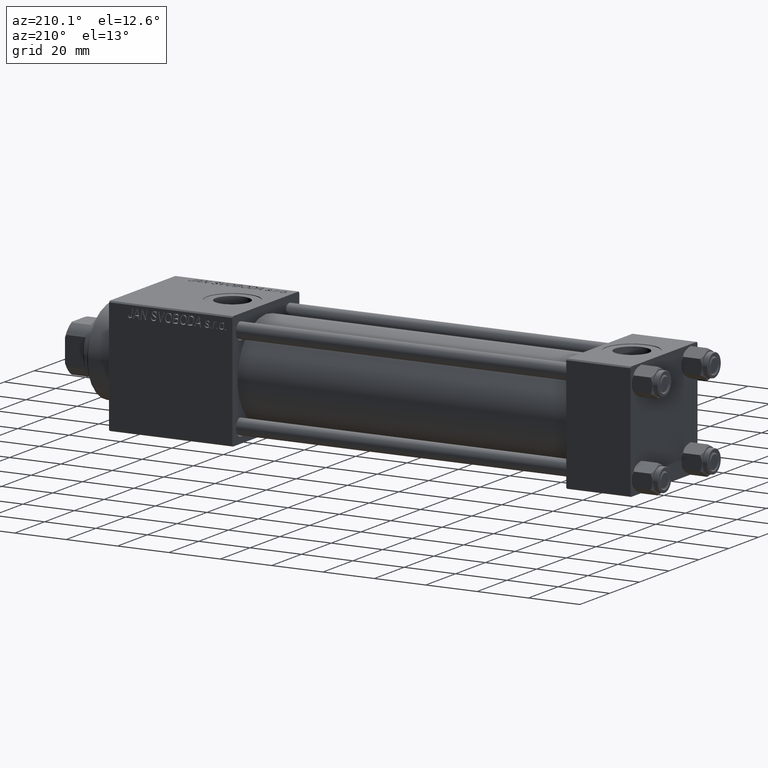
[diagram: clean part render]
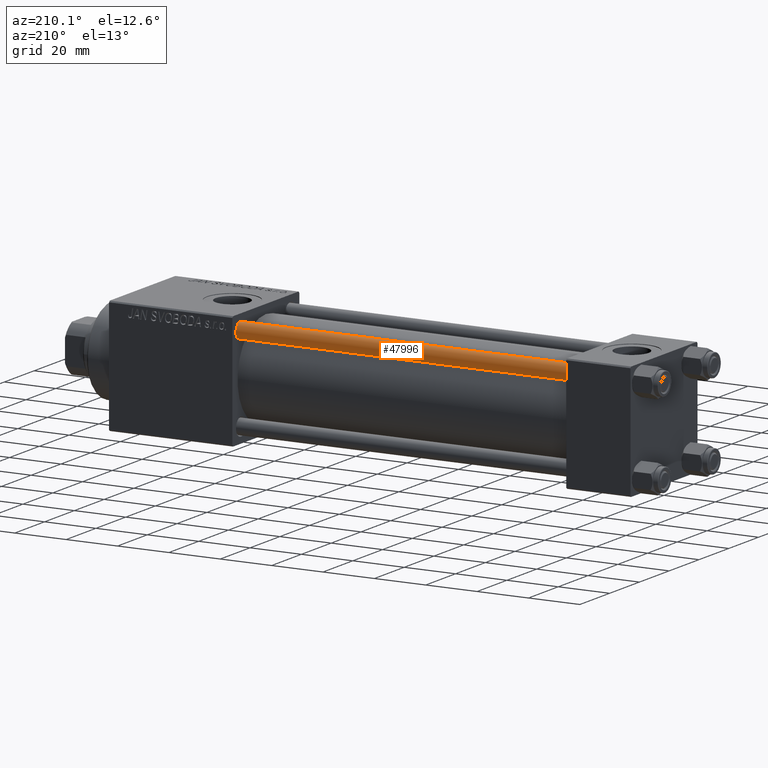
[diagram: same view with one face highlighted and labeled with its STEP entity id]
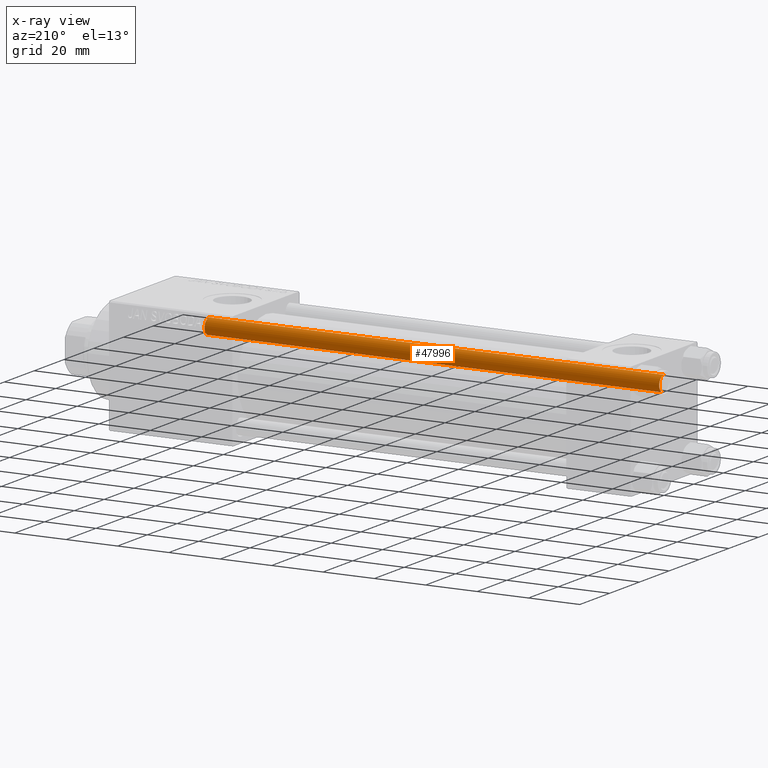
[diagram: x-ray of the same camera — body ghosted, the highlighted face saturated]
A machine part, auxiliary view. The second image highlights one B-rep face of the part: STEP entity #47996.
The next image is the same camera in x-ray: the body ghosted, the highlighted face saturated — about 0% of this face is hidden behind the body in this view.
In plain terms, the highlighted cylindrical surface (edge-blend (fillet) strip) has radius 3 mm, axis along (-1, 0, 0).
Its self-contained STEP definition (entity closure, byte-faithful):
#1314 = EDGE_CURVE ( 'NONE', #17821, #8211, #24050, .T. ) ;
#3479 = CYLINDRICAL_SURFACE ( 'NONE', #49284, 3.000000000000000444 ) ;
#6969 = VERTEX_POINT ( 'NONE', #19729 ) ;
#7112 = DIRECTION ( 'NONE',  ( -1.000000000000000000, 0.000000000000000000, 0.000000000000000000 ) ) ;
#7325 = ORIENTED_EDGE ( 'NONE', *, *, #1314, .T. ) ;
#7505 = AXIS2_PLACEMENT_3D ( 'NONE', #23891, #38958, #31698 ) ;
#8135 = DIRECTION ( 'NONE',  ( -0.000000000000000000, -0.000000000000000000, -1.000000000000000000 ) ) ;
#8211 = VERTEX_POINT ( 'NONE', #23041 ) ;
#8713 = VERTEX_POINT ( 'NONE', #41636 ) ;
#12073 = VECTOR ( 'NONE', #24553, 1000.000000000000000 ) ;
#14805 = EDGE_LOOP ( 'NONE', ( #34088, #15264, #7325, #29474 ) ) ;
#15264 = ORIENTED_EDGE ( 'NONE', *, *, #50277, .T. ) ;
#17792 = EDGE_CURVE ( 'NONE', #6969, #8713, #26935, .T. ) ;
#17821 = VERTEX_POINT ( 'NONE', #31934 ) ;
#19729 = CARTESIAN_POINT ( 'NONE',  ( -3.000000000000000444, 0.000000000000000000, 177.5000000000000000 ) ) ;
#21730 = DIRECTION ( 'NONE',  ( -0.000000000000000000, -0.000000000000000000, -1.000000000000000000 ) ) ;
#22785 = EDGE_CURVE ( 'NONE', #6969, #8211, #44604, .T. ) ;
#23041 = CARTESIAN_POINT ( 'NONE',  ( -3.000000000000000444, 0.000000000000000000, 0.5000000000000281997 ) ) ;
#23102 = DIRECTION ( 'NONE',  ( 1.000000000000000000, 0.000000000000000000, 0.000000000000000000 ) ) ;
#23699 = FACE_OUTER_BOUND ( 'NONE', #14805, .T. ) ;
#23891 = CARTESIAN_POINT ( 'NONE',  ( 0.000000000000000000, 0.000000000000000000, 0.5000000000000281997 ) ) ;
#23944 = CARTESIAN_POINT ( 'NONE',  ( 0.000000000000000000, 0.000000000000000000, 178.0000000000000000 ) ) ;
#24050 = CIRCLE ( 'NONE', #7505, 3.000000000000000444 ) ;
#24553 = DIRECTION ( 'NONE',  ( -0.000000000000000000, -0.000000000000000000, -1.000000000000000000 ) ) ;
#26752 = DIRECTION ( 'NONE',  ( 0.000000000000000000, 0.000000000000000000, -1.000000000000000000 ) ) ;
#26935 = CIRCLE ( 'NONE', #35230, 3.000000000000000444 ) ;
#29474 = ORIENTED_EDGE ( 'NONE', *, *, #22785, .F. ) ;
#31417 = CARTESIAN_POINT ( 'NONE',  ( 0.000000000000000000, 0.000000000000000000, 177.5000000000000000 ) ) ;
#31698 = DIRECTION ( 'NONE',  ( 1.000000000000000000, 0.000000000000000000, 0.000000000000000000 ) ) ;
#31934 = CARTESIAN_POINT ( 'NONE',  ( 3.000000000000000444, 3.673940397442060361E-16, 0.5000000000000281997 ) ) ;
#34088 = ORIENTED_EDGE ( 'NONE', *, *, #17792, .T. ) ;
#35230 = AXIS2_PLACEMENT_3D ( 'NONE', #31417, #26752, #23102 ) ;
#38958 = DIRECTION ( 'NONE',  ( -0.000000000000000000, -0.000000000000000000, 1.000000000000000000 ) ) ;
#40653 = CARTESIAN_POINT ( 'NONE',  ( 3.000000000000000444, 3.673940397442060361E-16, 178.0000000000000000 ) ) ;
#41117 = VECTOR ( 'NONE', #21730, 1000.000000000000000 ) ;
#41636 = CARTESIAN_POINT ( 'NONE',  ( 3.000000000000000444, 3.673940397442060361E-16, 177.5000000000000000 ) ) ;
#44288 = LINE ( 'NONE', #40653, #12073 ) ;
#44604 = LINE ( 'NONE', #49272, #41117 ) ;
#47996 = ADVANCED_FACE ( 'NONE', ( #23699 ), #3479, .T. ) ;
#49272 = CARTESIAN_POINT ( 'NONE',  ( -3.000000000000000444, 0.000000000000000000, 178.0000000000000000 ) ) ;
#49284 = AXIS2_PLACEMENT_3D ( 'NONE', #23944, #8135, #7112 ) ;
#50277 = EDGE_CURVE ( 'NONE', #8713, #17821, #44288, .T. ) ;